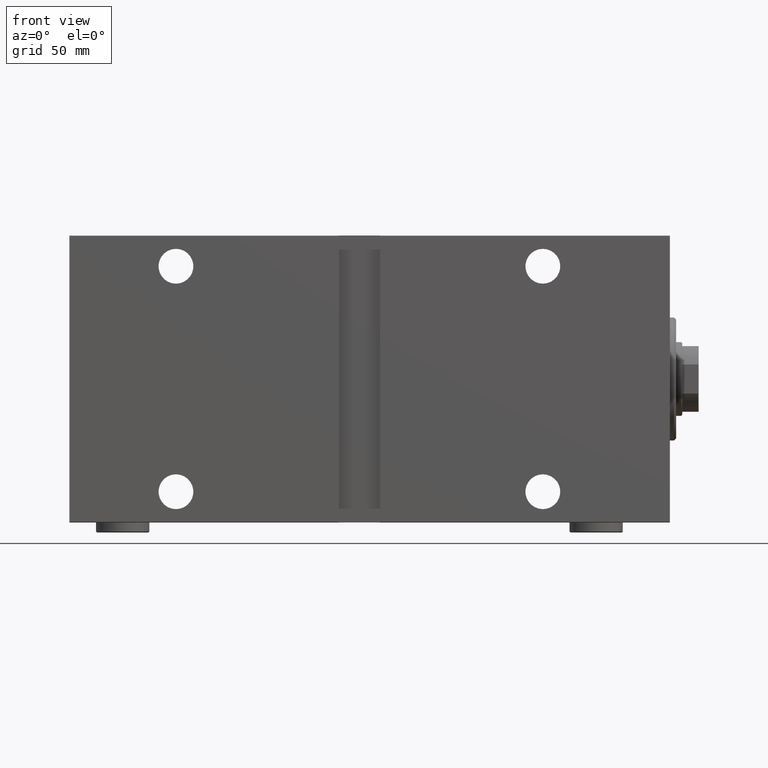
[diagram: clean part render]
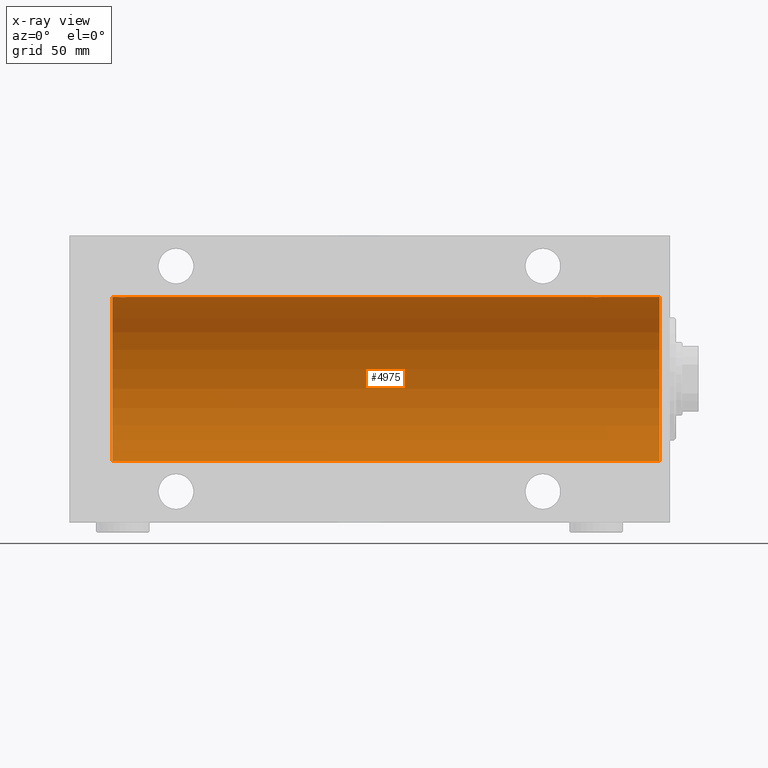
[diagram: x-ray — body ghosted, one internal face saturated and labeled with its STEP entity id]
A machine part, front view, then the same camera in x-ray: the body is ghosted and one INTERNAL B-rep face — a face not visible from any outside direction — is saturated and labeled: STEP entity #4975.
In plain terms, the highlighted cylindrical surface (partial cylindrical patch) has radius 40 mm, axis along (1, 0, -0).
Its self-contained STEP definition (entity closure, byte-faithful):
#399 = ORIENTED_EDGE ( 'NONE', *, *, #33834, .F. ) ;
#731 = DIRECTION ( 'NONE',  ( 0.000000000000000000, 0.000000000000000000, 1.000000000000000000 ) ) ;
#811 = CARTESIAN_POINT ( 'NONE',  ( 269.9999999999999432, -3.437435726281339749E-15, 40.00000000000000000 ) ) ;
#1213 = EDGE_CURVE ( 'NONE', #30807, #13825, #28290, .T. ) ;
#1404 = CARTESIAN_POINT ( 'NONE',  ( 5.000000000000004441, 0.000000000000000000, 0.000000000000000000 ) ) ;
#1575 = DIRECTION ( 'NONE',  ( -1.000000000000000000, -0.000000000000000000, -0.000000000000000000 ) ) ;
#1775 = CARTESIAN_POINT ( 'NONE',  ( 264.3027865941911614, -1.327859336864147810, 39.97836169682016561 ) ) ;
#1904 = ORIENTED_EDGE ( 'NONE', *, *, #1213, .F. ) ;
#1921 = CARTESIAN_POINT ( 'NONE',  ( 36.96489325853514174, -2.847401743820462183, 39.89859630624607689 ) ) ;
#1998 = CARTESIAN_POINT ( 'NONE',  ( 264.7390238300525311, -1.981471132463184848, 39.95113231465138881 ) ) ;
#2211 = CARTESIAN_POINT ( 'NONE',  ( 267.3910969250932226, -2.980812880639903906, 39.88879797994688658 ) ) ;
#2649 = CARTESIAN_POINT ( 'NONE',  ( 269.6018872812848031, -1.506322235190773240, 39.97196309111975410 ) ) ;
#2790 = VECTOR ( 'NONE', #30230, 1000.000000000000000 ) ;
#3188 = VECTOR ( 'NONE', #1575, 1000.000000000000000 ) ;
#3505 = CARTESIAN_POINT ( 'NONE',  ( 39.00000000000000000, 1.037715139942869821E-15, 40.00000000000000000 ) ) ;
#4975 = ADVANCED_FACE ( 'NONE', ( #43138 ), #39787, .F. ) ;
#5139 = CARTESIAN_POINT ( 'NONE',  ( 269.9202617499163921, -0.7903958539027420294, 39.99381900068937057 ) ) ;
#5285 = CARTESIAN_POINT ( 'NONE',  ( 39.00000000000000711, -0.3964922677423692865, 40.00000000000000711 ) ) ;
#5492 = CARTESIAN_POINT ( 'NONE',  ( 272.0000000000000000, 4.898587196589413026E-15, -40.00000000000000000 ) ) ;
#5588 = CARTESIAN_POINT ( 'NONE',  ( 266.2213047658424898, -2.903766417398230715, 39.89448096967571189 ) ) ;
#5747 = B_SPLINE_CURVE_WITH_KNOTS ( 'NONE', 3,
 ( #12522, #8725, #26234, #39480, #12739, #1775, #9172, #42835, #1998, #40131, #12084, #22645, #29387, #36766, #5588, #26014, #23070, #19272, #2211, #43709, #22412, #8511, #19705, #30042, #43275, #15450, #33415, #2649, #36334, #5139, #12954, #15885 ),
 .UNSPECIFIED., .F., .F.,
 ( 4, 2, 2, 2, 2, 2, 2, 2, 2, 2, 2, 2, 2, 2, 2, 4 ),
 ( 0.009382660366305044589, 0.009968941372944078658, 0.01055522237958311273, 0.01114150338622214680, 0.01172778439286118086, 0.01231406539950021493, 0.01290034640613924727, 0.01348662741277828134, 0.01407290841941731541, 0.01465918942605634948, 0.01524547043269538354, 0.01583175143933441761, 0.01641803244597345168, 0.01700431345261248575, 0.01759059445925151982, 0.01876315647252958796 ),
 .UNSPECIFIED. ) ;
#5939 = CARTESIAN_POINT ( 'NONE',  ( 38.25829670320502629, -1.984537326394305801, 39.95097977400578060 ) ) ;
#6164 = CARTESIAN_POINT ( 'NONE',  ( 37.82690184632411246, -2.387636253591820079, 39.92882473497731866 ) ) ;
#6228 = EDGE_CURVE ( 'NONE', #12963, #24912, #9724, .T. ) ;
#7966 = CARTESIAN_POINT ( 'NONE',  ( 33.30278659419118270, -1.327859336864150253, 39.97836169682017982 ) ) ;
#8168 = AXIS2_PLACEMENT_3D ( 'NONE', #22279, #43790, #13042 ) ;
#8511 = CARTESIAN_POINT ( 'NONE',  ( 268.3285364474628523, -2.696981015661932712, 39.90904630908467254 ) ) ;
#8725 = CARTESIAN_POINT ( 'NONE',  ( 263.9999999999999432, -0.1957844162750541073, 39.99999999999999289 ) ) ;
#8870 = CARTESIAN_POINT ( 'NONE',  ( 37.98136279514229585, -2.261082456166707111, 39.93628274425758207 ) ) ;
#8959 = VERTEX_POINT ( 'NONE', #28558 ) ;
#9096 = CARTESIAN_POINT ( 'NONE',  ( 36.77455678826341057, -2.904869018727228358, 39.89440043036668015 ) ) ;
#9172 = CARTESIAN_POINT ( 'NONE',  ( 264.3956640008790373, -1.502129635933994400, 39.97212271185185983 ) ) ;
#9173 = ORIENTED_EDGE ( 'NONE', *, *, #6228, .T. ) ;
#9523 = CARTESIAN_POINT ( 'NONE',  ( 36.19560531073086906, -3.000157693440643758, 39.88732948994960026 ) ) ;
#9724 = LINE ( 'NONE', #5492, #19708 ) ;
#10028 = LINE ( 'NONE', #30455, #2790 ) ;
#10522 = VERTEX_POINT ( 'NONE', #29787 ) ;
#12084 = CARTESIAN_POINT ( 'NONE',  ( 265.1695517717758435, -2.384933850258093013, 39.92898715513240404 ) ) ;
#12522 = CARTESIAN_POINT ( 'NONE',  ( 263.9999999999999432, -1.484439008399638965E-23, 40.00000000000000000 ) ) ;
#12665 = CARTESIAN_POINT ( 'NONE',  ( 34.16955177177597847, -2.384933850258112553, 39.92898715513240404 ) ) ;
#12739 = CARTESIAN_POINT ( 'NONE',  ( 264.1533472698686182, -0.9668189122103363342, 39.98872185468384544 ) ) ;
#12954 = CARTESIAN_POINT ( 'NONE',  ( 269.9999999999999432, -0.3964922677423687869, 40.00000000000000000 ) ) ;
#12963 = VERTEX_POINT ( 'NONE', #16018 ) ;
#13042 = DIRECTION ( 'NONE',  ( 0.000000000000000000, 0.000000000000000000, 1.000000000000000000 ) ) ;
#13263 = EDGE_CURVE ( 'NONE', #24912, #14777, #15568, .T. ) ;
#13758 = ORIENTED_EDGE ( 'NONE', *, *, #20895, .T. ) ;
#13825 = VERTEX_POINT ( 'NONE', #3505 ) ;
#14777 = VERTEX_POINT ( 'NONE', #37315 ) ;
#15389 = EDGE_CURVE ( 'NONE', #30807, #25699, #5747, .T. ) ;
#15447 = CARTESIAN_POINT ( 'NONE',  ( 272.0000000000000000, 0.000000000000000000, 40.00000000000000000 ) ) ;
#15450 = CARTESIAN_POINT ( 'NONE',  ( 269.2582967032049623, -1.984537326394329781, 39.95097977400578060 ) ) ;
#15568 = CIRCLE ( 'NONE', #37773, 40.00000000000000000 ) ;
#15583 = EDGE_CURVE ( 'NONE', #12963, #8959, #22822, .T. ) ;
#15885 = CARTESIAN_POINT ( 'NONE',  ( 269.9999999999999432, -3.437435726281339749E-15, 40.00000000000000000 ) ) ;
#16018 = CARTESIAN_POINT ( 'NONE',  ( 272.0000000000000000, 4.898587196589413026E-15, -40.00000000000000000 ) ) ;
#16033 = CARTESIAN_POINT ( 'NONE',  ( 38.69537007708435539, -1.331594428131644747, 39.97823692017209396 ) ) ;
#16377 = EDGE_LOOP ( 'NONE', ( #33424, #9173, #31702, #399, #13758, #1904, #36379, #26663 ) ) ;
#16549 = DIRECTION ( 'NONE',  ( 0.000000000000000000, 0.000000000000000000, 1.000000000000000000 ) ) ;
#17952 = EDGE_CURVE ( 'NONE', #8959, #25699, #10028, .T. ) ;
#18063 = CARTESIAN_POINT ( 'NONE',  ( 33.01898122889073051, -0.3904143323715976166, 39.99856256910221219 ) ) ;
#18294 = CARTESIAN_POINT ( 'NONE',  ( 32.99999999999999289, -1.483452932268112700E-23, 40.00000000000000000 ) ) ;
#18967 = CARTESIAN_POINT ( 'NONE',  ( 37.50088468404035069, -2.604941918888315833, 39.91523680494983495 ) ) ;
#19272 = CARTESIAN_POINT ( 'NONE',  ( 267.1956053107309117, -3.000157693440636208, 39.88732948994960026 ) ) ;
#19367 = CARTESIAN_POINT ( 'NONE',  ( 263.9999999999999432, -1.484439008399638965E-23, 40.00000000000000000 ) ) ;
#19416 = CARTESIAN_POINT ( 'NONE',  ( 33.39566400087915810, -1.502129635934004614, 39.97212271185186694 ) ) ;
#19705 = CARTESIAN_POINT ( 'NONE',  ( 268.5008846840403294, -2.604941918888314056, 39.91523680494982784 ) ) ;
#19708 = VECTOR ( 'NONE', #43397, 1000.000000000000000 ) ;
#20895 = EDGE_CURVE ( 'NONE', #10522, #13825, #29695, .T. ) ;
#22279 = CARTESIAN_POINT ( 'NONE',  ( 272.0000000000000000, 0.000000000000000000, 0.000000000000000000 ) ) ;
#22334 = CARTESIAN_POINT ( 'NONE',  ( 39.00000000000000000, 1.037715139942869821E-15, 40.00000000000000000 ) ) ;
#22412 = CARTESIAN_POINT ( 'NONE',  ( 267.9648932585351417, -2.847401743820463516, 39.89859630624608400 ) ) ;
#22645 = CARTESIAN_POINT ( 'NONE',  ( 265.4955691708652239, -2.602909538701744019, 39.91537030566259148 ) ) ;
#22785 = CARTESIAN_POINT ( 'NONE',  ( 35.03061658105534804, -2.845855236045349734, 39.89870693240651889 ) ) ;
#22822 = CIRCLE ( 'NONE', #29275, 40.00000000000000000 ) ;
#23070 = CARTESIAN_POINT ( 'NONE',  ( 266.7995871398080112, -2.999840380514743110, 39.88735335562824957 ) ) ;
#23215 = CARTESIAN_POINT ( 'NONE',  ( 34.49556917086533758, -2.602909538701760006, 39.91537030566259148 ) ) ;
#24912 = VERTEX_POINT ( 'NONE', #35652 ) ;
#25038 = CARTESIAN_POINT ( 'NONE',  ( 33.09574826348647036, -0.7773146824711036906, 39.99291453282343412 ) ) ;
#25113 = LINE ( 'NONE', #15447, #42456 ) ;
#25699 = VERTEX_POINT ( 'NONE', #811 ) ;
#25716 = CARTESIAN_POINT ( 'NONE',  ( 38.38251680911464803, -1.833695109615718355, 39.95828327492363741 ) ) ;
#26014 = CARTESIAN_POINT ( 'NONE',  ( 266.6047751654642752, -2.980272303779546217, 39.88883864243167920 ) ) ;
#26234 = CARTESIAN_POINT ( 'NONE',  ( 264.0189812288907660, -0.3904143323715977831, 39.99856256910221219 ) ) ;
#26373 = CARTESIAN_POINT ( 'NONE',  ( 34.01538552187719233, -2.258217541132905293, 39.93644519243653690 ) ) ;
#26588 = CARTESIAN_POINT ( 'NONE',  ( 35.60477516546423260, -2.980272303779553766, 39.88883864243167920 ) ) ;
#26663 = ORIENTED_EDGE ( 'NONE', *, *, #17952, .F. ) ;
#28290 = LINE ( 'NONE', #35238, #3188 ) ;
#28558 = CARTESIAN_POINT ( 'NONE',  ( 272.0000000000000000, 0.000000000000000000, 40.00000000000000000 ) ) ;
#28795 = DIRECTION ( 'NONE',  ( -1.000000000000000000, 0.000000000000000000, 0.000000000000000000 ) ) ;
#29168 = DIRECTION ( 'NONE',  ( -1.000000000000000000, -0.000000000000000000, -0.000000000000000000 ) ) ;
#29275 = AXIS2_PLACEMENT_3D ( 'NONE', #41224, #37868, #16549 ) ;
#29314 = CARTESIAN_POINT ( 'NONE',  ( 33.73902383005257377, -1.981471132463168416, 39.95113231465138881 ) ) ;
#29387 = CARTESIAN_POINT ( 'NONE',  ( 265.6677573113412905, -2.695129988695732504, 39.90917164320281785 ) ) ;
#29524 = CARTESIAN_POINT ( 'NONE',  ( 36.39109692509333627, -2.980812880639903906, 39.88879797994688658 ) ) ;
#29695 = B_SPLINE_CURVE_WITH_KNOTS ( 'NONE', 3,
 ( #18294, #42302, #18063, #25038, #38720, #7966, #19416, #43635, #29314, #26373, #12665, #23215, #32445, #22785, #40264, #26588, #36908, #9523, #29524, #9096, #1921, #40059, #18967, #6164, #8870, #5939, #25716, #43199, #16033, #42982, #5285, #22334 ),
 .UNSPECIFIED., .F., .F.,
 ( 4, 2, 2, 2, 2, 2, 2, 2, 2, 2, 2, 2, 2, 2, 2, 4 ),
 ( 0.009382660366305105304, 0.009968941372944142842, 0.01055522237958318038, 0.01114150338622221965, 0.01172778439286125719, 0.01231406539950029473, 0.01290034640613933400, 0.01348662741277837154, 0.01407290841941740908, 0.01465918942605644835, 0.01524547043269548416, 0.01583175143933452517, 0.01641803244597356271, 0.01700431345261260024, 0.01759059445925163778, 0.01876315647252971286 ),
 .UNSPECIFIED. ) ;
#29787 = CARTESIAN_POINT ( 'NONE',  ( 32.99999999999999289, -1.483452932268112700E-23, 40.00000000000000000 ) ) ;
#30042 = CARTESIAN_POINT ( 'NONE',  ( 268.8269018463240627, -2.387636253591819191, 39.92882473497732576 ) ) ;
#30230 = DIRECTION ( 'NONE',  ( -1.000000000000000000, -0.000000000000000000, -0.000000000000000000 ) ) ;
#30455 = CARTESIAN_POINT ( 'NONE',  ( 272.0000000000000000, 0.000000000000000000, 40.00000000000000000 ) ) ;
#30807 = VERTEX_POINT ( 'NONE', #19367 ) ;
#31702 = ORIENTED_EDGE ( 'NONE', *, *, #13263, .T. ) ;
#32445 = CARTESIAN_POINT ( 'NONE',  ( 34.66775731134134730, -2.695129988695744494, 39.90917164320281074 ) ) ;
#33415 = CARTESIAN_POINT ( 'NONE',  ( 269.3825168091145770, -1.833695109615707697, 39.95828327492363741 ) ) ;
#33424 = ORIENTED_EDGE ( 'NONE', *, *, #15583, .F. ) ;
#33834 = EDGE_CURVE ( 'NONE', #10522, #14777, #25113, .T. ) ;
#35238 = CARTESIAN_POINT ( 'NONE',  ( 272.0000000000000000, 0.000000000000000000, 40.00000000000000000 ) ) ;
#35652 = CARTESIAN_POINT ( 'NONE',  ( 5.000000000000004441, 4.898587196589413026E-15, -40.00000000000000000 ) ) ;
#36334 = CARTESIAN_POINT ( 'NONE',  ( 269.6953700770843056, -1.331594428131646524, 39.97823692017208685 ) ) ;
#36379 = ORIENTED_EDGE ( 'NONE', *, *, #15389, .T. ) ;
#36766 = CARTESIAN_POINT ( 'NONE',  ( 266.0306165810552557, -2.845855236045339076, 39.89870693240651178 ) ) ;
#36908 = CARTESIAN_POINT ( 'NONE',  ( 35.79958713980802543, -2.999840380514749327, 39.88735335562824247 ) ) ;
#37315 = CARTESIAN_POINT ( 'NONE',  ( 5.000000000000004441, 0.000000000000000000, 40.00000000000000000 ) ) ;
#37773 = AXIS2_PLACEMENT_3D ( 'NONE', #1404, #28795, #731 ) ;
#37868 = DIRECTION ( 'NONE',  ( -1.000000000000000000, 0.000000000000000000, 0.000000000000000000 ) ) ;
#38720 = CARTESIAN_POINT ( 'NONE',  ( 33.15334726986859692, -0.9668189122103387767, 39.98872185468385254 ) ) ;
#39480 = CARTESIAN_POINT ( 'NONE',  ( 264.0957482634864277, -0.7773146824711030245, 39.99291453282344833 ) ) ;
#39787 = CYLINDRICAL_SURFACE ( 'NONE', #8168, 40.00000000000000000 ) ;
#40059 = CARTESIAN_POINT ( 'NONE',  ( 37.32853644746295885, -2.696981015661930936, 39.90904630908465833 ) ) ;
#40131 = CARTESIAN_POINT ( 'NONE',  ( 265.0153855218772492, -2.258217541132919504, 39.93644519243652979 ) ) ;
#40264 = CARTESIAN_POINT ( 'NONE',  ( 35.22130476584258219, -2.903766417398241373, 39.89448096967571189 ) ) ;
#41224 = CARTESIAN_POINT ( 'NONE',  ( 272.0000000000000000, 0.000000000000000000, 0.000000000000000000 ) ) ;
#42302 = CARTESIAN_POINT ( 'NONE',  ( 32.99999999999997158, -0.1957844162750552452, 40.00000000000000000 ) ) ;
#42456 = VECTOR ( 'NONE', #29168, 1000.000000000000000 ) ;
#42835 = CARTESIAN_POINT ( 'NONE',  ( 264.6149239908463642, -1.830402106103510729, 39.95843610133493229 ) ) ;
#42982 = CARTESIAN_POINT ( 'NONE',  ( 38.92026174991647025, -0.7903958539027386987, 39.99381900068935636 ) ) ;
#43138 = FACE_OUTER_BOUND ( 'NONE', #16377, .T. ) ;
#43199 = CARTESIAN_POINT ( 'NONE',  ( 38.60188728128492386, -1.506322235190783232, 39.97196309111974699 ) ) ;
#43275 = CARTESIAN_POINT ( 'NONE',  ( 268.9813627951422177, -2.261082456166725763, 39.93628274425758917 ) ) ;
#43397 = DIRECTION ( 'NONE',  ( -1.000000000000000000, -0.000000000000000000, -0.000000000000000000 ) ) ;
#43635 = CARTESIAN_POINT ( 'NONE',  ( 33.61492399084646365, -1.830402106103518722, 39.95843610133494650 ) ) ;
#43709 = CARTESIAN_POINT ( 'NONE',  ( 267.7745567882633395, -2.904869018727233687, 39.89440043036668726 ) ) ;
#43790 = DIRECTION ( 'NONE',  ( -1.000000000000000000, -0.000000000000000000, -0.000000000000000000 ) ) ;